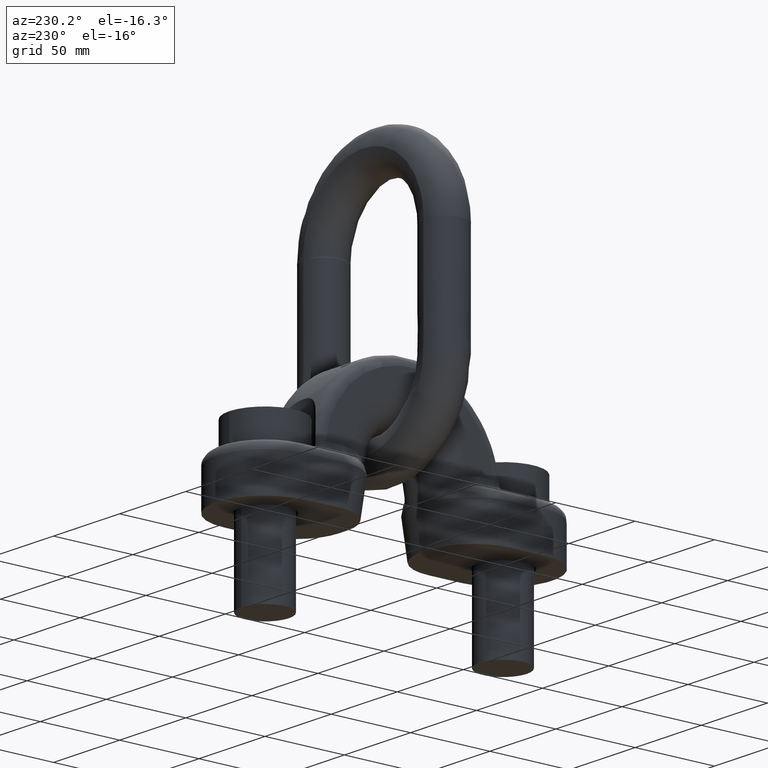
[diagram: clean part render]
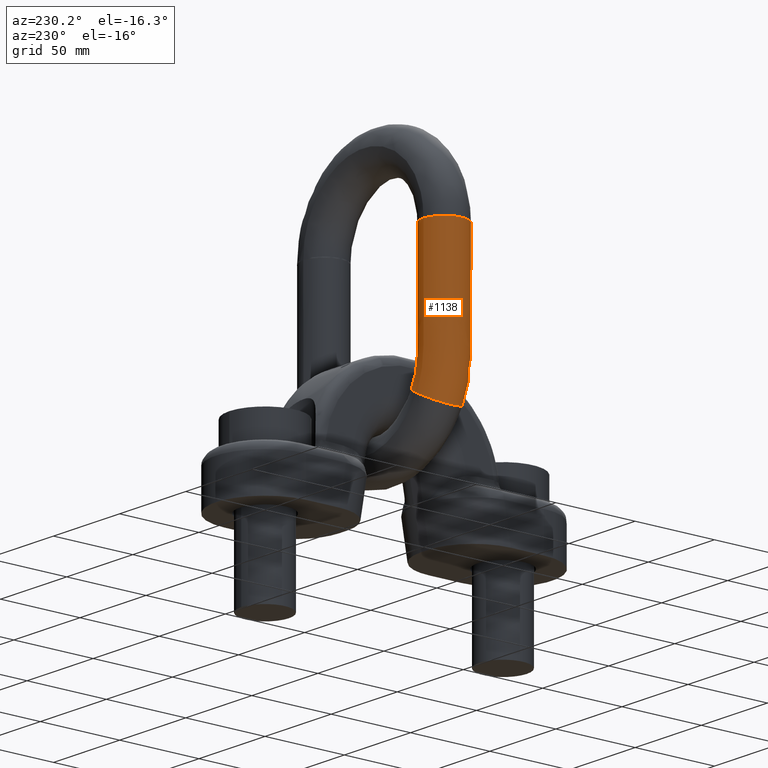
[diagram: same view with one face highlighted and labeled with its STEP entity id]
A machine part, auxiliary view. The second image highlights one B-rep face of the part: STEP entity #1138.
In plain terms, the highlighted face is a freeform B-spline surface patch.
Its self-contained STEP definition (entity closure, byte-faithful):
#33=(
BOUNDED_CURVE()
B_SPLINE_CURVE(4,(#7259,#7260,#7261,#7262,#7263,#7264,#7265,#7266,#7267,
#7268,#7269,#7270,#7271,#7272),.UNSPECIFIED.,.T.,.F.)
B_SPLINE_CURVE_WITH_KNOTS((2,3,3,3,3,3,2),(-0.25,0.,0.25,0.5,0.75,1.,1.25),
 .UNSPECIFIED.)
CURVE()
GEOMETRIC_REPRESENTATION_ITEM()
RATIONAL_B_SPLINE_CURVE((1.0166117137858,1.0166117137858,0.958470715535491,
1.0166117137858,1.0166117137858,0.958470715535491,1.0166117137858,1.0166117137858,
0.958470715535491,1.0166117137858,1.0166117137858,0.958470715535491,1.0166117137858,
1.0166117137858))
REPRESENTATION_ITEM('')
);
#34=(
BOUNDED_CURVE()
B_SPLINE_CURVE(4,(#7414,#7415,#7416,#7417,#7418,#7419,#7420,#7421,#7422,
#7423,#7424,#7425,#7426,#7427),.UNSPECIFIED.,.T.,.F.)
B_SPLINE_CURVE_WITH_KNOTS((2,3,3,3,3,3,2),(-0.25,0.,0.25,0.5,0.75,1.,1.25),
 .UNSPECIFIED.)
CURVE()
GEOMETRIC_REPRESENTATION_ITEM()
RATIONAL_B_SPLINE_CURVE((1.0166117137858,1.0166117137858,0.958470715535492,
1.0166117137858,1.0166117137858,0.958470715535492,1.0166117137858,1.0166117137858,
0.958470715535492,1.0166117137858,1.0166117137858,0.958470715535492,1.0166117137858,
1.0166117137858))
REPRESENTATION_ITEM('')
);
#822=(
BOUNDED_SURFACE()
B_SPLINE_SURFACE(4,3,((#7695,#7696,#7697,#7698,#7699,#7700,#7701,#7702,
#7703,#7704,#7705,#7706,#7707),(#7708,#7709,#7710,#7711,#7712,#7713,#7714,
#7715,#7716,#7717,#7718,#7719,#7720),(#7721,#7722,#7723,#7724,#7725,#7726,
#7727,#7728,#7729,#7730,#7731,#7732,#7733),(#7734,#7735,#7736,#7737,#7738,
#7739,#7740,#7741,#7742,#7743,#7744,#7745,#7746),(#7747,#7748,#7749,#7750,
#7751,#7752,#7753,#7754,#7755,#7756,#7757,#7758,#7759),(#7760,#7761,#7762,
#7763,#7764,#7765,#7766,#7767,#7768,#7769,#7770,#7771,#7772),(#7773,#7774,
#7775,#7776,#7777,#7778,#7779,#7780,#7781,#7782,#7783,#7784,#7785),(#7786,
#7787,#7788,#7789,#7790,#7791,#7792,#7793,#7794,#7795,#7796,#7797,#7798),
(#7799,#7800,#7801,#7802,#7803,#7804,#7805,#7806,#7807,#7808,#7809,#7810,
#7811),(#7812,#7813,#7814,#7815,#7816,#7817,#7818,#7819,#7820,#7821,#7822,
#7823,#7824),(#7825,#7826,#7827,#7828,#7829,#7830,#7831,#7832,#7833,#7834,
#7835,#7836,#7837),(#7838,#7839,#7840,#7841,#7842,#7843,#7844,#7845,#7846,
#7847,#7848,#7849,#7850),(#7851,#7852,#7853,#7854,#7855,#7856,#7857,#7858,
#7859,#7860,#7861,#7862,#7863),(#7864,#7865,#7866,#7867,#7868,#7869,#7870,
#7871,#7872,#7873,#7874,#7875,#7876)),.UNSPECIFIED.,.T.,.F.,.F.)
B_SPLINE_SURFACE_WITH_KNOTS((2,3,3,3,3,3,2),(4,1,1,1,1,1,1,1,1,1,4),(-0.25,
0.,0.25,0.5,0.75,1.,1.25),(0.,0.028887344077354,0.118434682925019,0.446139811250857,
0.573077715987154,0.651307016996363,0.671429465044271,0.691384642109503,
0.732821049207751,0.846345590615265,1.),.UNSPECIFIED.)
GEOMETRIC_REPRESENTATION_ITEM()
RATIONAL_B_SPLINE_SURFACE(((1.0166117137858,1.0166117137858,1.0166117137858,
1.01661171378581,1.0166117137858,1.01661171378581,1.0166117137858,1.0166117137858,
1.0166117137858,1.0166117137858,1.0166117137858,1.0166117137858,1.0166117137858),
(1.0166117137858,1.0166117137858,1.0166117137858,1.01661171378581,1.0166117137858,
1.01661171378581,1.0166117137858,1.0166117137858,1.0166117137858,1.0166117137858,
1.0166117137858,1.0166117137858,1.0166117137858),(0.958470715535492,0.958470715535492,
0.958470715535492,0.958470715535492,0.958470715535493,0.958470715535492,
0.958470715535493,0.958470715535492,0.958470715535493,0.958470715535492,
0.958470715535493,0.958470715535492,0.958470715535491),(1.0166117137858,
1.0166117137858,1.0166117137858,1.01661171378581,1.0166117137858,1.01661171378581,
1.0166117137858,1.0166117137858,1.0166117137858,1.0166117137858,1.0166117137858,
1.0166117137858,1.0166117137858),(1.0166117137858,1.0166117137858,1.0166117137858,
1.01661171378581,1.0166117137858,1.01661171378581,1.0166117137858,1.0166117137858,
1.0166117137858,1.0166117137858,1.0166117137858,1.0166117137858,1.0166117137858),
(0.958470715535492,0.958470715535492,0.958470715535492,0.958470715535492,
0.958470715535493,0.958470715535492,0.958470715535493,0.958470715535492,
0.958470715535493,0.958470715535492,0.958470715535493,0.958470715535492,
0.958470715535491),(1.0166117137858,1.0166117137858,1.0166117137858,1.01661171378581,
1.0166117137858,1.01661171378581,1.0166117137858,1.0166117137858,1.0166117137858,
1.0166117137858,1.0166117137858,1.0166117137858,1.0166117137858),(1.0166117137858,
1.0166117137858,1.0166117137858,1.01661171378581,1.0166117137858,1.01661171378581,
1.0166117137858,1.0166117137858,1.0166117137858,1.0166117137858,1.0166117137858,
1.0166117137858,1.0166117137858),(0.958470715535492,0.958470715535492,0.958470715535492,
0.958470715535492,0.958470715535493,0.958470715535492,0.958470715535493,
0.958470715535492,0.958470715535493,0.958470715535492,0.958470715535493,
0.958470715535492,0.958470715535491),(1.0166117137858,1.0166117137858,1.0166117137858,
1.01661171378581,1.0166117137858,1.01661171378581,1.0166117137858,1.0166117137858,
1.0166117137858,1.0166117137858,1.0166117137858,1.0166117137858,1.0166117137858),
(1.0166117137858,1.0166117137858,1.0166117137858,1.01661171378581,1.0166117137858,
1.01661171378581,1.0166117137858,1.0166117137858,1.0166117137858,1.0166117137858,
1.0166117137858,1.0166117137858,1.0166117137858),(0.958470715535492,0.958470715535492,
0.958470715535492,0.958470715535492,0.958470715535493,0.958470715535492,
0.958470715535493,0.958470715535492,0.958470715535493,0.958470715535492,
0.958470715535493,0.958470715535492,0.958470715535491),(1.0166117137858,
1.0166117137858,1.0166117137858,1.01661171378581,1.0166117137858,1.01661171378581,
1.0166117137858,1.0166117137858,1.0166117137858,1.0166117137858,1.0166117137858,
1.0166117137858,1.0166117137858),(1.0166117137858,1.0166117137858,1.0166117137858,
1.01661171378581,1.0166117137858,1.01661171378581,1.0166117137858,1.0166117137858,
1.0166117137858,1.0166117137858,1.0166117137858,1.0166117137858,1.0166117137858)))
REPRESENTATION_ITEM('')
SURFACE()
);
#1138=ADVANCED_FACE('',(#1525,#1526),#822,.F.);
#1525=FACE_BOUND('',#1723,.T.);
#1526=FACE_BOUND('',#1724,.T.);
#1723=EDGE_LOOP('',(#2817));
#1724=EDGE_LOOP('',(#2818));
#2817=ORIENTED_EDGE('',*,*,#3488,.F.);
#2818=ORIENTED_EDGE('',*,*,#3487,.F.);
#3087=VERTEX_POINT('',#7273);
#3088=VERTEX_POINT('',#7428);
#3487=EDGE_CURVE('',#3087,#3087,#33,.T.);
#3488=EDGE_CURVE('',#3088,#3088,#34,.T.);
#7259=CARTESIAN_POINT('',(-43.9947758246071,13.,61.529586170425));
#7260=CARTESIAN_POINT('',(-35.9219658310306,13.,65.9287183577048));
#7261=CARTESIAN_POINT('',(-30.5598959468361,10.7019029611437,68.850681619168));
#7262=CARTESIAN_POINT('',(-28.541693448442,4.59619407771255,69.950464665988));
#7263=CARTESIAN_POINT('',(-28.541693448442,-4.59619407771258,69.950464665988));
#7264=CARTESIAN_POINT('',(-30.5598959468361,-10.7019029611437,68.850681619168));
#7265=CARTESIAN_POINT('',(-35.9219658310307,-13.,65.9287183577048));
#7266=CARTESIAN_POINT('',(-43.994775824607,-13.,61.529586170425));
#7267=CARTESIAN_POINT('',(-49.3568457088016,-10.7019029611437,58.6076229089616));
#7268=CARTESIAN_POINT('',(-51.3750482071957,-4.59619407771255,57.5078398621417));
#7269=CARTESIAN_POINT('',(-51.3750482071956,4.59619407771257,57.5078398621417));
#7270=CARTESIAN_POINT('',(-49.3568457088015,10.7019029611437,58.6076229089616));
#7271=CARTESIAN_POINT('',(-43.9947758246071,13.,61.529586170425));
#7272=CARTESIAN_POINT('',(-35.9219658310306,13.,65.9287183577048));
#7273=CARTESIAN_POINT('',(-39.9583708278188,13.,63.7291522640649));
#7414=CARTESIAN_POINT('',(-40.9026931457023,13.,150.494446073145));
#7415=CARTESIAN_POINT('',(-50.094831224782,13.,150.507692970874));
#7416=CARTESIAN_POINT('',(-56.2003740041128,10.7019029611437,150.516491740005));
#7417=CARTESIAN_POINT('',(-58.4984085238828,4.59619407771256,150.519803464437));
#7418=CARTESIAN_POINT('',(-58.4984085238828,-4.59619407771256,150.519803464437));
#7419=CARTESIAN_POINT('',(-56.2003740041128,-10.7019029611437,150.516491740005));
#7420=CARTESIAN_POINT('',(-50.094831224782,-13.,150.507692970874));
#7421=CARTESIAN_POINT('',(-40.9026931457023,-13.,150.494446073145));
#7422=CARTESIAN_POINT('',(-34.7971503663715,-10.7019029611437,150.485647304013));
#7423=CARTESIAN_POINT('',(-32.4991158466015,-4.59619407771256,150.482335579581));
#7424=CARTESIAN_POINT('',(-32.4991158466015,4.59619407771256,150.482335579581));
#7425=CARTESIAN_POINT('',(-34.7971503663715,10.7019029611437,150.485647304013));
#7426=CARTESIAN_POINT('',(-40.9026931457023,13.,150.494446073145));
#7427=CARTESIAN_POINT('',(-50.094831224782,13.,150.507692970874));
#7428=CARTESIAN_POINT('',(-45.4987621852422,13.,150.501069522009));
#7695=CARTESIAN_POINT('',(-40.9026931457023,13.,150.494446073145));
#7696=CARTESIAN_POINT('',(-40.9139039386459,13.,149.440047919827));
#7697=CARTESIAN_POINT('',(-40.898518688002,13.,144.967882936438));
#7698=CARTESIAN_POINT('',(-40.9085288134585,13.,128.796221302581));
#7699=CARTESIAN_POINT('',(-40.9006265017837,13.,110.981063193419));
#7700=CARTESIAN_POINT('',(-40.9053579775417,13.,94.8933635771381));
#7701=CARTESIAN_POINT('',(-40.9018142829833,13.,88.722290469787));
#7702=CARTESIAN_POINT('',(-40.9080046540543,13.,85.4860259007357));
#7703=CARTESIAN_POINT('',(-40.8785774803024,13.,83.6175376041219));
#7704=CARTESIAN_POINT('',(-40.6046887201301,13.,79.6136016810336));
#7705=CARTESIAN_POINT('',(-39.2799840561536,13.,73.1803786712986));
#7706=CARTESIAN_POINT('',(-37.2821307362867,13.,68.4229850633749));
#7707=CARTESIAN_POINT('',(-35.9219658310306,13.,65.9287183577048));
#7708=CARTESIAN_POINT('',(-50.094831224782,13.,150.507692970874));
#7709=CARTESIAN_POINT('',(-50.1085614400126,13.,149.323314635775));
#7710=CARTESIAN_POINT('',(-50.0897186334616,13.,145.025638446512));
#7711=CARTESIAN_POINT('',(-50.1019783529745,13.,128.752483346946));
#7712=CARTESIAN_POINT('',(-50.0923001401431,13.,111.000460599213));
#7713=CARTESIAN_POINT('',(-50.0980949292223,13.,94.8921497643784));
#7714=CARTESIAN_POINT('',(-50.0937548536144,13.,88.7092319210877));
#7715=CARTESIAN_POINT('',(-50.1013363982553,13.,85.5339507472577));
#7716=CARTESIAN_POINT('',(-50.0652960011776,13.,83.1840200037493));
#7717=CARTESIAN_POINT('',(-49.7298557120424,13.,78.2943188853457));
#7718=CARTESIAN_POINT('',(-48.1074477124471,13.,70.4113447306709));
#7719=CARTESIAN_POINT('',(-45.660613111261,13.,64.5843135922801));
#7720=CARTESIAN_POINT('',(-43.9947758246071,13.,61.529586170425));
#7721=CARTESIAN_POINT('',(-56.2003740041128,10.7019029611437,150.516491740005));
#7722=CARTESIAN_POINT('',(-56.2157776537959,10.7019029611437,149.245778805326));
#7723=CARTESIAN_POINT('',(-56.1946382917188,10.7019029611437,145.064000439605));
#7724=CARTESIAN_POINT('',(-56.2083922221139,10.7019029611437,128.723432003623));
#7725=CARTESIAN_POINT('',(-56.1975344316484,10.7019029611437,111.013344619216));
#7726=CARTESIAN_POINT('',(-56.204035487857,10.7019029611437,94.8913435334814));
#7727=CARTESIAN_POINT('',(-56.1991664451549,10.7019029611437,88.7005582559365));
#7728=CARTESIAN_POINT('',(-56.2076720261489,10.7019029611438,85.5657830802923));
#7729=CARTESIAN_POINT('',(-56.1672390364468,10.7019029611437,82.8960717340543));
#7730=CARTESIAN_POINT('',(-55.7909153869901,10.7019029611437,77.4180333598443));
#7731=CARTESIAN_POINT('',(-53.9707687943127,10.7019029611437,68.5721148326345));
#7732=CARTESIAN_POINT('',(-51.2257147368227,10.7019029611437,62.0346159396841));
#7733=CARTESIAN_POINT('',(-49.3568457088015,10.7019029611437,58.6076229089616));
#7734=CARTESIAN_POINT('',(-58.4984085238828,4.59619407771256,150.519803464437));
#7735=CARTESIAN_POINT('',(-58.5144420291376,4.59619407771256,149.216595484313));
#7736=CARTESIAN_POINT('',(-58.4924382780837,4.59619407771256,145.078439317124));
#7737=CARTESIAN_POINT('',(-58.5067546069928,4.59619407771256,128.712497514713));
#7738=CARTESIAN_POINT('',(-58.4954528412384,4.59619407771255,111.018193970665));
#7739=CARTESIAN_POINT('',(-58.502219725777,4.59619407771257,94.891040080291));
#7740=CARTESIAN_POINT('',(-58.4971515878127,4.59619407771258,88.6972936187619));
#7741=CARTESIAN_POINT('',(-58.5060049621991,4.59619407771259,85.5777642919226));
#7742=CARTESIAN_POINT('',(-58.4639186666655,4.59619407771255,82.7876923339614));
#7743=CARTESIAN_POINT('',(-58.0722071349682,4.59619407771257,77.0882126609222));
#7744=CARTESIAN_POINT('',(-56.1776347083861,4.59619407771256,67.8798563474777));
#7745=CARTESIAN_POINT('',(-53.3203353305663,4.59619407771257,61.0749480719104));
#7746=CARTESIAN_POINT('',(-51.3750482071956,4.59619407771257,57.5078398621417));
#7747=CARTESIAN_POINT('',(-58.4984085238828,-4.59619407771256,150.519803464437));
#7748=CARTESIAN_POINT('',(-58.5144420291376,-4.59619407771256,149.216595484313));
#7749=CARTESIAN_POINT('',(-58.4924382780837,-4.59619407771255,145.078439317124));
#7750=CARTESIAN_POINT('',(-58.5067546069929,-4.59619407771256,128.712497514713));
#7751=CARTESIAN_POINT('',(-58.4954528412383,-4.59619407771257,111.018193970665));
#7752=CARTESIAN_POINT('',(-58.5022197257771,-4.59619407771254,94.891040080291));
#7753=CARTESIAN_POINT('',(-58.4971515878127,-4.59619407771254,88.6972936187619));
#7754=CARTESIAN_POINT('',(-58.5060049621992,-4.59619407771253,85.5777642919226));
#7755=CARTESIAN_POINT('',(-58.4639186666656,-4.59619407771256,82.7876923339614));
#7756=CARTESIAN_POINT('',(-58.0722071349681,-4.59619407771256,77.0882126609222));
#7757=CARTESIAN_POINT('',(-56.1776347083862,-4.59619407771254,67.8798563474777));
#7758=CARTESIAN_POINT('',(-53.3203353305664,-4.59619407771255,61.0749480719104));
#7759=CARTESIAN_POINT('',(-51.3750482071957,-4.59619407771255,57.5078398621417));
#7760=CARTESIAN_POINT('',(-56.2003740041128,-10.7019029611437,150.516491740005));
#7761=CARTESIAN_POINT('',(-56.2157776537959,-10.7019029611437,149.245778805326));
#7762=CARTESIAN_POINT('',(-56.1946382917188,-10.7019029611437,145.064000439605));
#7763=CARTESIAN_POINT('',(-56.208392222114,-10.7019029611437,128.723432003623));
#7764=CARTESIAN_POINT('',(-56.1975344316483,-10.7019029611437,111.013344619216));
#7765=CARTESIAN_POINT('',(-56.204035487857,-10.7019029611437,94.8913435334814));
#7766=CARTESIAN_POINT('',(-56.1991664451549,-10.7019029611437,88.7005582559364));
#7767=CARTESIAN_POINT('',(-56.207672026149,-10.7019029611437,85.5657830802923));
#7768=CARTESIAN_POINT('',(-56.1672390364468,-10.7019029611437,82.8960717340543));
#7769=CARTESIAN_POINT('',(-55.7909153869901,-10.7019029611437,77.4180333598444));
#7770=CARTESIAN_POINT('',(-53.9707687943127,-10.7019029611437,68.5721148326344));
#7771=CARTESIAN_POINT('',(-51.2257147368228,-10.7019029611437,62.0346159396841));
#7772=CARTESIAN_POINT('',(-49.3568457088016,-10.7019029611437,58.6076229089616));
#7773=CARTESIAN_POINT('',(-50.094831224782,-13.,150.507692970874));
#7774=CARTESIAN_POINT('',(-50.1085614400126,-13.,149.323314635775));
#7775=CARTESIAN_POINT('',(-50.0897186334617,-13.,145.025638446512));
#7776=CARTESIAN_POINT('',(-50.1019783529745,-13.,128.752483346946));
#7777=CARTESIAN_POINT('',(-50.0923001401431,-13.,111.000460599213));
#7778=CARTESIAN_POINT('',(-50.0980949292223,-13.,94.8921497643784));
#7779=CARTESIAN_POINT('',(-50.0937548536144,-13.,88.7092319210877));
#7780=CARTESIAN_POINT('',(-50.1013363982555,-13.,85.5339507472577));
#7781=CARTESIAN_POINT('',(-50.0652960011775,-13.,83.1840200037493));
#7782=CARTESIAN_POINT('',(-49.7298557120425,-13.,78.2943188853456));
#7783=CARTESIAN_POINT('',(-48.1074477124471,-13.,70.4113447306709));
#7784=CARTESIAN_POINT('',(-45.660613111261,-13.,64.5843135922801));
#7785=CARTESIAN_POINT('',(-43.994775824607,-13.,61.529586170425));
#7786=CARTESIAN_POINT('',(-40.9026931457023,-13.,150.494446073145));
#7787=CARTESIAN_POINT('',(-40.9139039386459,-13.,149.440047919827));
#7788=CARTESIAN_POINT('',(-40.898518688002,-13.,144.967882936438));
#7789=CARTESIAN_POINT('',(-40.9085288134585,-13.,128.796221302581));
#7790=CARTESIAN_POINT('',(-40.9006265017836,-13.,110.981063193419));
#7791=CARTESIAN_POINT('',(-40.9053579775418,-13.,94.8933635771381));
#7792=CARTESIAN_POINT('',(-40.9018142829833,-13.,88.722290469787));
#7793=CARTESIAN_POINT('',(-40.9080046540544,-13.,85.4860259007357));
#7794=CARTESIAN_POINT('',(-40.8785774803024,-13.,83.6175376041219));
#7795=CARTESIAN_POINT('',(-40.6046887201301,-13.,79.6136016810336));
#7796=CARTESIAN_POINT('',(-39.2799840561536,-13.,73.1803786712986));
#7797=CARTESIAN_POINT('',(-37.2821307362867,-13.,68.4229850633749));
#7798=CARTESIAN_POINT('',(-35.9219658310307,-13.,65.9287183577048));
#7799=CARTESIAN_POINT('',(-34.7971503663715,-10.7019029611437,150.485647304013));
#7800=CARTESIAN_POINT('',(-34.8066877248626,-10.7019029611437,149.517583750276));
#7801=CARTESIAN_POINT('',(-34.7935990297447,-10.7019029611437,144.929520943345));
#7802=CARTESIAN_POINT('',(-34.8021149443196,-10.7019029611437,128.825272645905));
#7803=CARTESIAN_POINT('',(-34.7953922102777,-10.7019029611437,110.968179173415));
#7804=CARTESIAN_POINT('',(-34.7994174189075,-10.7019029611437,94.8941698080355));
#7805=CARTESIAN_POINT('',(-34.7964026914426,-10.7019029611437,88.7309641349379));
#7806=CARTESIAN_POINT('',(-34.801669026161,-10.7019029611437,85.4541935677012));
#7807=CARTESIAN_POINT('',(-34.776634445033,-10.7019029611437,83.9054858738166));
#7808=CARTESIAN_POINT('',(-34.5436290451826,-10.7019029611437,80.4898872065352));
#7809=CARTESIAN_POINT('',(-33.4166629742879,-10.7019029611437,75.0196085693347));
#7810=CARTESIAN_POINT('',(-31.7170291107249,-10.7019029611437,70.9726827159706));
#7811=CARTESIAN_POINT('',(-30.5598959468361,-10.7019029611437,68.850681619168));
#7812=CARTESIAN_POINT('',(-32.4991158466015,-4.59619407771256,150.482335579581));
#7813=CARTESIAN_POINT('',(-32.5080233495209,-4.59619407771256,149.546767071289));
#7814=CARTESIAN_POINT('',(-32.4957990433799,-4.59619407771256,144.915082065827));
#7815=CARTESIAN_POINT('',(-32.5037525594404,-4.59619407771256,128.836207134814));
#7816=CARTESIAN_POINT('',(-32.4974738006881,-4.59619407771255,110.963329821967));
#7817=CARTESIAN_POINT('',(-32.5012331809872,-4.59619407771258,94.8944732612253));
#7818=CARTESIAN_POINT('',(-32.4984175487849,-4.59619407771258,88.7342287721128));
#7819=CARTESIAN_POINT('',(-32.5033360901106,-4.59619407771259,85.4422123560706));
#7820=CARTESIAN_POINT('',(-32.4799548148142,-4.59619407771254,84.0138652739099));
#7821=CARTESIAN_POINT('',(-32.2623372972045,-4.59619407771257,80.8197079054571));
#7822=CARTESIAN_POINT('',(-31.2097970602145,-4.59619407771256,75.7118670544918));
#7823=CARTESIAN_POINT('',(-29.6224085169813,-4.59619407771257,71.9323505837444));
#7824=CARTESIAN_POINT('',(-28.541693448442,-4.59619407771258,69.950464665988));
#7825=CARTESIAN_POINT('',(-32.4991158466015,4.59619407771256,150.482335579581));
#7826=CARTESIAN_POINT('',(-32.5080233495209,4.59619407771256,149.546767071289));
#7827=CARTESIAN_POINT('',(-32.4957990433799,4.59619407771256,144.915082065827));
#7828=CARTESIAN_POINT('',(-32.5037525594404,4.59619407771255,128.836207134814));
#7829=CARTESIAN_POINT('',(-32.4974738006881,4.59619407771258,110.963329821967));
#7830=CARTESIAN_POINT('',(-32.5012331809872,4.59619407771253,94.8944732612253));
#7831=CARTESIAN_POINT('',(-32.4984175487849,4.59619407771254,88.7342287721128));
#7832=CARTESIAN_POINT('',(-32.5033360901106,4.59619407771252,85.4422123560706));
#7833=CARTESIAN_POINT('',(-32.4799548148142,4.59619407771257,84.0138652739099));
#7834=CARTESIAN_POINT('',(-32.2623372972045,4.59619407771255,80.8197079054571));
#7835=CARTESIAN_POINT('',(-31.2097970602145,4.59619407771254,75.7118670544918));
#7836=CARTESIAN_POINT('',(-29.6224085169813,4.59619407771255,71.9323505837444));
#7837=CARTESIAN_POINT('',(-28.541693448442,4.59619407771255,69.950464665988));
#7838=CARTESIAN_POINT('',(-34.7971503663715,10.7019029611437,150.485647304013));
#7839=CARTESIAN_POINT('',(-34.8066877248626,10.7019029611437,149.517583750276));
#7840=CARTESIAN_POINT('',(-34.7935990297447,10.7019029611437,144.929520943345));
#7841=CARTESIAN_POINT('',(-34.8021149443195,10.7019029611437,128.825272645905));
#7842=CARTESIAN_POINT('',(-34.7953922102778,10.7019029611437,110.968179173415));
#7843=CARTESIAN_POINT('',(-34.7994174189074,10.7019029611437,94.8941698080355));
#7844=CARTESIAN_POINT('',(-34.7964026914426,10.7019029611437,88.7309641349379));
#7845=CARTESIAN_POINT('',(-34.8016690261609,10.7019029611437,85.4541935677012));
#7846=CARTESIAN_POINT('',(-34.776634445033,10.7019029611437,83.9054858738166));
#7847=CARTESIAN_POINT('',(-34.5436290451826,10.7019029611437,80.4898872065353));
#7848=CARTESIAN_POINT('',(-33.4166629742878,10.7019029611437,75.0196085693347));
#7849=CARTESIAN_POINT('',(-31.7170291107248,10.7019029611437,70.9726827159706));
#7850=CARTESIAN_POINT('',(-30.5598959468361,10.7019029611437,68.850681619168));
#7851=CARTESIAN_POINT('',(-40.9026931457023,13.,150.494446073145));
#7852=CARTESIAN_POINT('',(-40.9139039386459,13.,149.440047919827));
#7853=CARTESIAN_POINT('',(-40.898518688002,13.,144.967882936438));
#7854=CARTESIAN_POINT('',(-40.9085288134585,13.,128.796221302581));
#7855=CARTESIAN_POINT('',(-40.9006265017837,13.,110.981063193419));
#7856=CARTESIAN_POINT('',(-40.9053579775417,13.,94.8933635771381));
#7857=CARTESIAN_POINT('',(-40.9018142829833,13.,88.722290469787));
#7858=CARTESIAN_POINT('',(-40.9080046540543,13.,85.4860259007357));
#7859=CARTESIAN_POINT('',(-40.8785774803024,13.,83.6175376041219));
#7860=CARTESIAN_POINT('',(-40.6046887201301,13.,79.6136016810336));
#7861=CARTESIAN_POINT('',(-39.2799840561536,13.,73.1803786712986));
#7862=CARTESIAN_POINT('',(-37.2821307362867,13.,68.4229850633749));
#7863=CARTESIAN_POINT('',(-35.9219658310306,13.,65.9287183577048));
#7864=CARTESIAN_POINT('',(-50.094831224782,13.,150.507692970874));
#7865=CARTESIAN_POINT('',(-50.1085614400126,13.,149.323314635775));
#7866=CARTESIAN_POINT('',(-50.0897186334616,13.,145.025638446512));
#7867=CARTESIAN_POINT('',(-50.1019783529745,13.,128.752483346946));
#7868=CARTESIAN_POINT('',(-50.0923001401431,13.,111.000460599213));
#7869=CARTESIAN_POINT('',(-50.0980949292223,13.,94.8921497643784));
#7870=CARTESIAN_POINT('',(-50.0937548536144,13.,88.7092319210877));
#7871=CARTESIAN_POINT('',(-50.1013363982553,13.,85.5339507472577));
#7872=CARTESIAN_POINT('',(-50.0652960011776,13.,83.1840200037493));
#7873=CARTESIAN_POINT('',(-49.7298557120424,13.,78.2943188853457));
#7874=CARTESIAN_POINT('',(-48.1074477124471,13.,70.4113447306709));
#7875=CARTESIAN_POINT('',(-45.660613111261,13.,64.5843135922801));
#7876=CARTESIAN_POINT('',(-43.9947758246071,13.,61.529586170425));